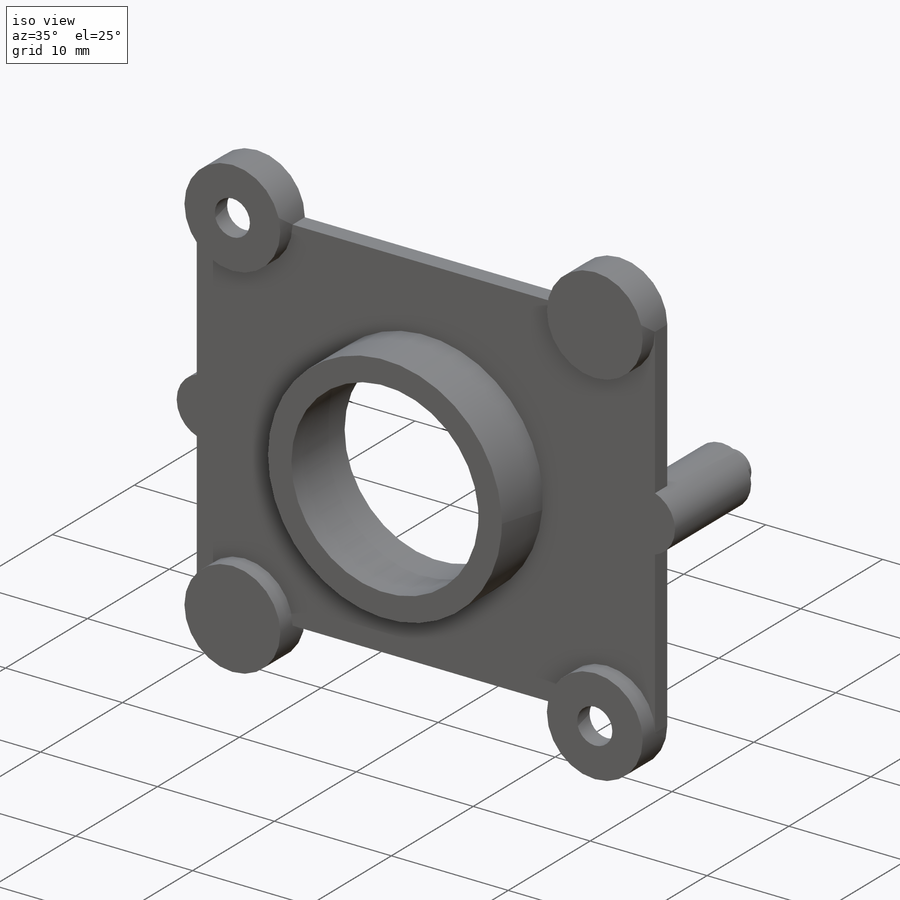
[diagram: iso view]
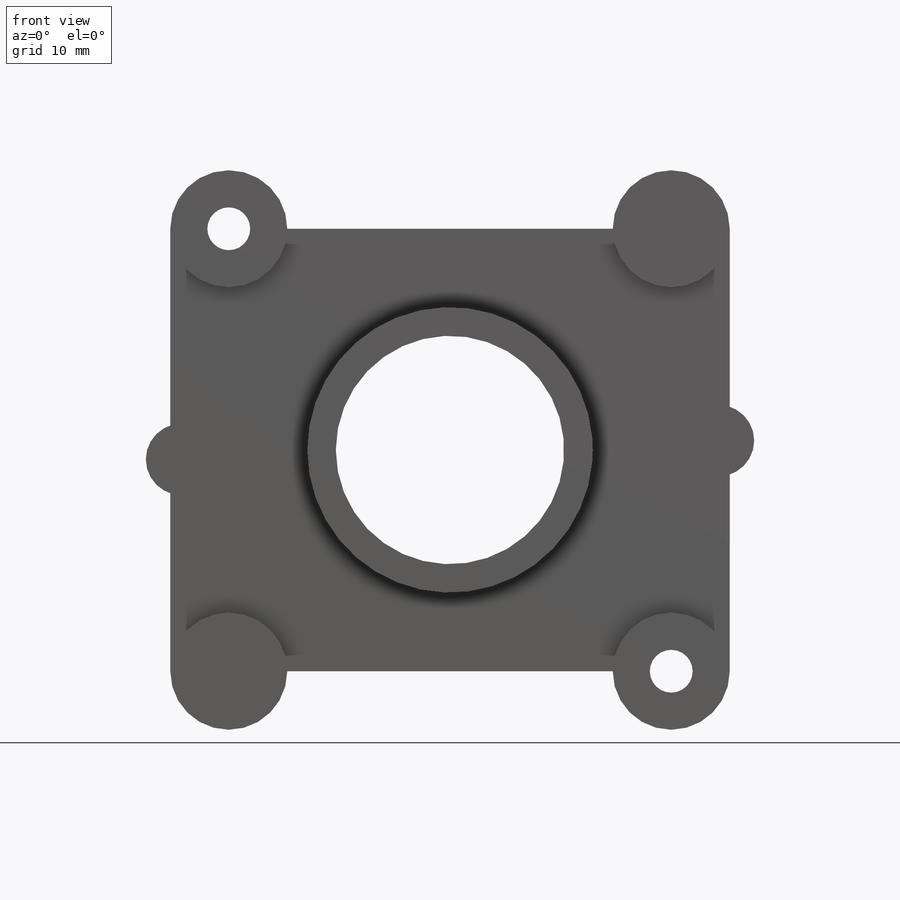
[diagram: front view]
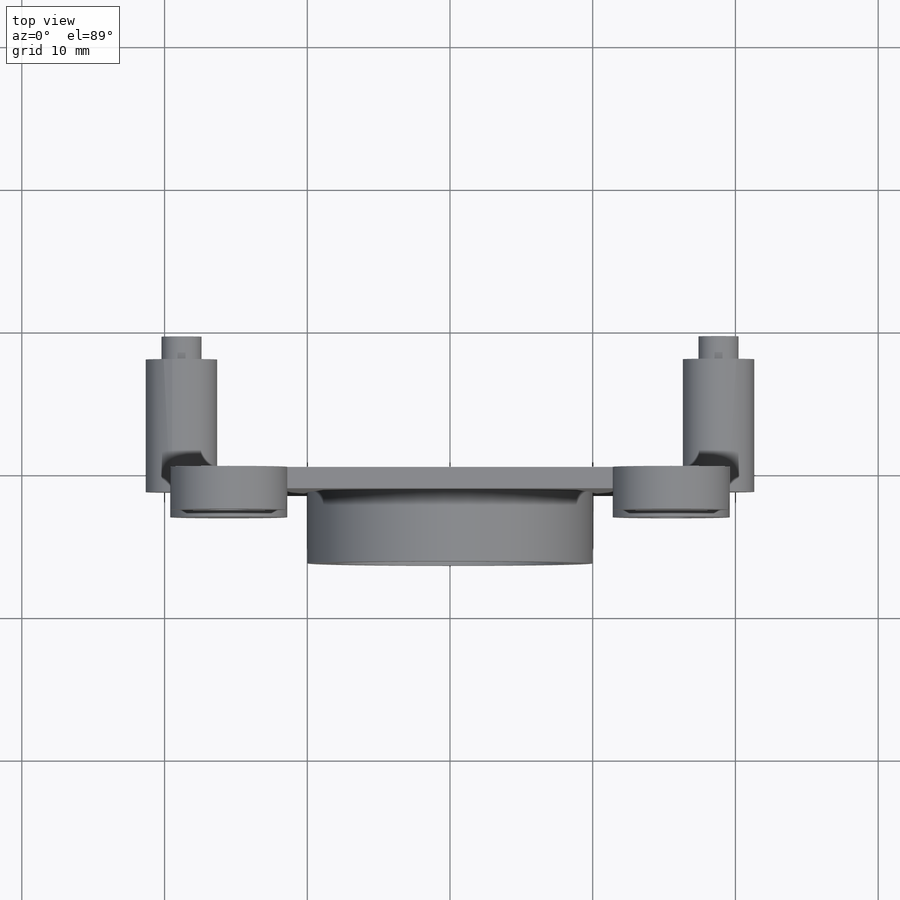
[diagram: top view]
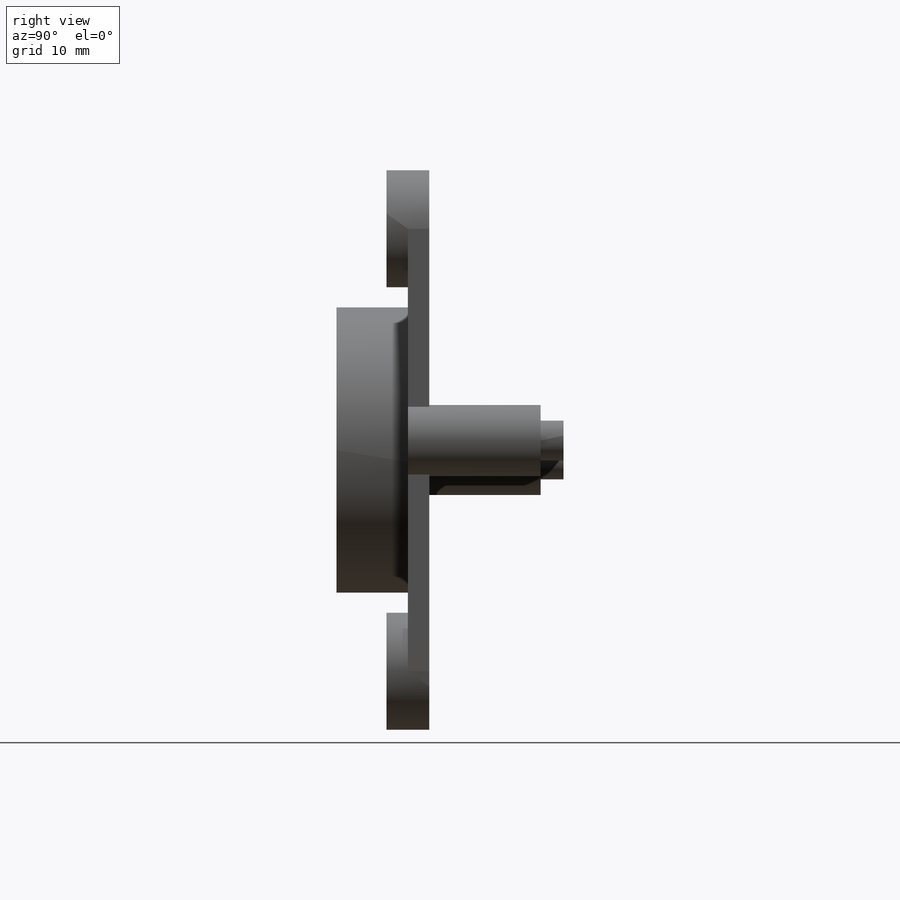
[diagram: right view]
SOLIDWORKS PART (.sldprt)
format: sldprt  version: not decoded by parser v0  size: 292,352 bytes
history: native  units: mm
features: sketch x6, extrude x5, material x1, cut_extrude x1 (+16 scaffold rows collapsed)
feature tree (29):
  scaffold x16  (default folders/planes/origin — collapsed)
  material  "Titanium"
  sketch  "Sketch1"  dims[c1.DIA_TOP=6.2mm c1.D8=6.2mm c1.D9=6.2mm c1.D10=6.2mm c1.D11=8.2mm c1.D12=8.2mm c1.D13=8.2mm c1.D14=8.2mm c1.D19=~3.783009mm c1.HALF_DIST=15.5mm c1.D2=15.5mm c1.D3=15.5mm c1.D1=15.5mm c1.D4=15.5mm c1.D5=15.5mm c1.D6=15.5mm c1.D7=15.5mm c1.D15=0.2mm c1.D16=0.2mm c1.D17=34.925mm c2.D17=97.0deg c2.D18=~18.704387mm c3.D17=~18.331153mm c3.D18=~18.331153mm c4.D17=28.575mm c5.D17=92.0deg c5.DIST_AXIS=~18.824899mm c5.D18=~18.824899mm]
  extrude  "Extrude1"  Depth=1.5mm
  sketch  "Sketch2"  dims[D1=~1.899763mm]
  extrude  "Extrude2"  Depth=1.5mm
  sketch  "Sketch3"
  extrude  "Extrude3"  Depth=7.8mm
  sketch  "Sketch4"  dims[D1=1.5mm]
  extrude  "Extrude4"  Depth=1.6mm
  sketch  "Sketch5"  dims[D1=7.5mm]
  cut_extrude  "Extrude5"  [1 undecoded]
  sketch  "Sketch6"  dims[D1=11.1125mm]
  extrude  "Extrude6"  Depth=5mm
decode coverage: 10 of 12 modeling features carry decoded parameters
note: ~ marks probable driven/reference dimensions
note: 1 parameter value undecoded
note: suppression state not decoded; provenance and decode notes live in map.json
